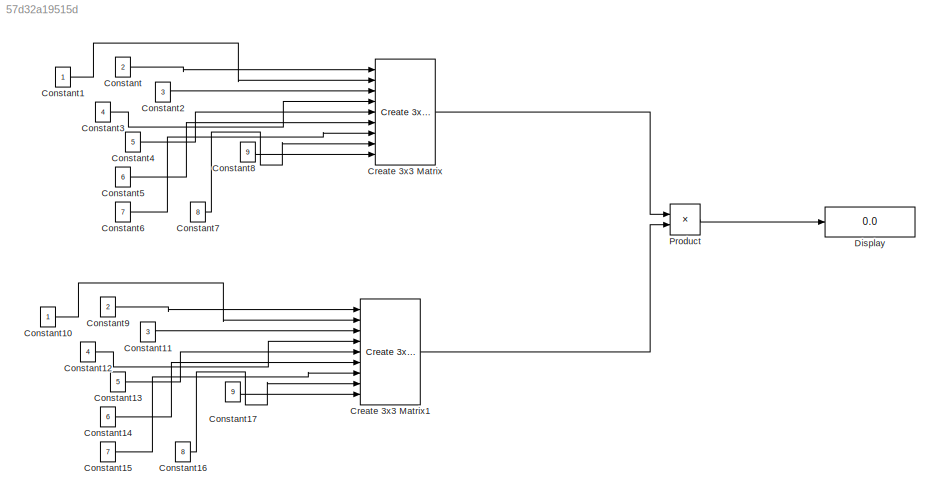
MODEL slx_57d32a19515d
KIND model
CONFIG AbsTol = auto
CONFIG EnableMultiTasking = off
CONFIG FixedStep = auto
CONFIG MaxStep = auto
CONFIG MinStep = auto
CONFIG RelTol = 1e-3
CONFIG SampleTimeConstraint = Unconstrained
CONFIG Solver = VariableStepAuto
CONFIG SolverName = VariableStepAuto
CONFIG StartTime = 0.0
CONFIG StopTime = 10.0
BLOCK [Constant] Constant
  Value = 2
BLOCK [Constant] Constant1
BLOCK [Constant] Constant10
BLOCK [Constant] Constant11
  Value = 3
BLOCK [Constant] Constant12
  Value = 4
BLOCK [Constant] Constant13
  Value = 5
BLOCK [Constant] Constant14
  Value = 6
BLOCK [Constant] Constant15
  Value = 7
BLOCK [Constant] Constant16
  Value = 8
BLOCK [Constant] Constant17
  Value = 9
BLOCK [Constant] Constant2
  Value = 3
BLOCK [Constant] Constant3
  Value = 4
BLOCK [Constant] Constant4
  Value = 5
BLOCK [Constant] Constant5
  Value = 6
BLOCK [Constant] Constant6
  Value = 7
BLOCK [Constant] Constant7
  Value = 8
BLOCK [Constant] Constant8
  Value = 9
BLOCK [Constant] Constant9
  Value = 2
BLOCK [Reference] Create 3x3 Matrix  REF=sharedutil/Create 3x3 Matrix
  Ports = [9, 1]
  SourceBlock = sharedutil/Create 3x3 Matrix
  SourceType = Create 3x3 Matrix
BLOCK [Reference] Create 3x3 Matrix1  REF=sharedutil/Create 3x3 Matrix
  Ports = [9, 1]
  SourceBlock = sharedutil/Create 3x3 Matrix
  SourceType = Create 3x3 Matrix
BLOCK [Display] Display
  Decimation = 1
  Ports = [1]
BLOCK [Product] Product
  InputSameDT = off
  Multiplication = Matrix(*)
  OutDataTypeStr = Inherit: Inherit via internal rule
  Ports = [2, 1]
  RndMeth = Floor
  SaturateOnIntegerOverflow = off
LINE Constant10:1 -> Create 3x3 Matrix1:2
LINE Constant11:1 -> Create 3x3 Matrix1:3
LINE Constant12:1 -> Create 3x3 Matrix1:4
LINE Constant13:1 -> Create 3x3 Matrix1:5
LINE Constant14:1 -> Create 3x3 Matrix1:6
LINE Constant15:1 -> Create 3x3 Matrix1:7
LINE Constant16:1 -> Create 3x3 Matrix1:8
LINE Constant17:1 -> Create 3x3 Matrix1:9
LINE Constant1:1 -> Create 3x3 Matrix:2
LINE Constant2:1 -> Create 3x3 Matrix:3
LINE Constant3:1 -> Create 3x3 Matrix:4
LINE Constant4:1 -> Create 3x3 Matrix:5
LINE Constant5:1 -> Create 3x3 Matrix:6
LINE Constant6:1 -> Create 3x3 Matrix:7
LINE Constant7:1 -> Create 3x3 Matrix:8
LINE Constant8:1 -> Create 3x3 Matrix:9
LINE Constant9:1 -> Create 3x3 Matrix1:1
LINE Constant:1 -> Create 3x3 Matrix:1
LINE Create 3x3 Matrix1:1 -> Product:2
LINE Create 3x3 Matrix:1 -> Product:1
LINE Product:1 -> Display:1
